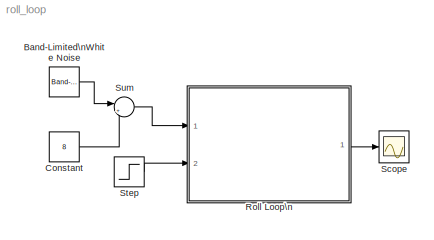
MODEL roll_loop
KIND model
BLOCK [Reference] Band-Limited\nWhite Noise  REF=simulink/Sources/Band-Limited\nWhite Noise
  Cov = [0.1]
  Ports = [0, 1]
  SID = 26
  SourceBlock = simulink/Sources/Band-Limited\nWhite Noise
  SourceProductBaseCode = SL
  SourceProductName = Simulink
  SourceType = Band-Limited White Noise.
  Ts = 0.1
  VectorParams1D = on
  seed = [23341]
BLOCK [Constant] Constant
  SID = 28
  Value = 8
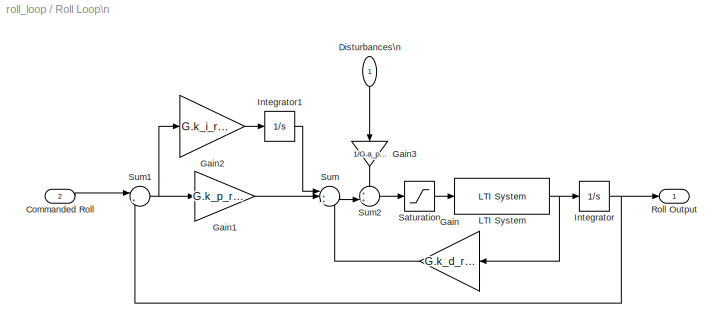
BLOCK [SubSystem] Roll Loop\n
  Ports = [2, 1]
  RequestExecContextInheritance = off
  SID = 21
BLOCK [Inport] Roll Loop\n/Commanded Roll
  IconDisplay = Port number
  Port = 2
  SID = 23
BLOCK [Inport] Roll Loop\n/Disturbances\n
  IconDisplay = Port number
  SID = 22
BLOCK [Gain] Roll Loop\n/Gain
  Gain = G.k_d_roll
  OutDataTypeStr = Inherit: Inherit via internal rule
  ParamDataTypeStr = Inherit: Inherit via internal rule
  SID = 2
  SaturateOnIntegerOverflow = off
BLOCK [Gain] Roll Loop\n/Gain1
  Gain = G.k_p_roll
  OutDataTypeStr = Inherit: Inherit via internal rule
  ParamDataTypeStr = Inherit: Inherit via internal rule
  SID = 6
  SaturateOnIntegerOverflow = off
BLOCK [Gain] Roll Loop\n/Gain2
  Gain = G.k_i_roll
  OutDataTypeStr = Inherit: Inherit via internal rule
  ParamDataTypeStr = Inherit: Inherit via internal rule
  SID = 8
  SaturateOnIntegerOverflow = off
BLOCK [Gain] Roll Loop\n/Gain3
  Gain = 1/G.a_phi2
  OutDataTypeStr = Inherit: Inherit via internal rule
  ParamDataTypeStr = Inherit: Inherit via internal rule
  SID = 14
  SaturateOnIntegerOverflow = off
BLOCK [Integrator] Roll Loop\n/Integrator
  Ports = [1, 1]
  SID = 4
BLOCK [Integrator] Roll Loop\n/Integrator1
  Ports = [1, 1]
  SID = 7
BLOCK [Reference] Roll Loop\n/LTI System  REF=cstblocks/LTI System
  IC = []
  Ports = [1, 1]
  SID = 1
  SourceBlock = cstblocks/LTI System
  SourceProductBaseCode = CT
  SourceProductName = Control System Toolbox
  SourceType = LTI Block
  sys = T_p_delta_a
BLOCK [Outport] Roll Loop\n/Roll Output
  IconDisplay = Port number
  SID = 24
BLOCK [Saturate] Roll Loop\n/Saturation
  InputPortMap = u0
  LowerLimit = -G.delta_a_max
  Ports = [1, 1]
  SID = 20
  UpperLimit = G.delta_a_max
BLOCK [Sum] Roll Loop\n/Sum
  IconShape = round
  InputSameDT = off
  Inputs = |++-
  OutDataTypeStr = Inherit: Inherit via internal rule
  Ports = [3, 1]
  SID = 3
  SaturateOnIntegerOverflow = off
BLOCK [Sum] Roll Loop\n/Sum1
  IconShape = round
  InputSameDT = off
  Inputs = |+-
  OutDataTypeStr = Inherit: Inherit via internal rule
  Ports = [2, 1]
  SID = 5
  SaturateOnIntegerOverflow = off
BLOCK [Sum] Roll Loop\n/Sum2
  IconShape = round
  InputSameDT = off
  Inputs = ++|
  OutDataTypeStr = Inherit: Inherit via internal rule
  Ports = [2, 1]
  SID = 13
  SaturateOnIntegerOverflow = off
BLOCK [Scope] Scope
  Floating = off
  NumInputPorts = 1
  Ports = [1]
  SID = 9
  ScopeSpecificationString = Simulink.scopes.TimeScopeBlockCfg('CurrentConfiguration', extmgr.ConfigurationSet(extmgr.Configuration('Core','General UI',true),extmgr.Configuration('Core','Source UI',true),extmgr.Configuration('Sources','WiredSimulink',true),extmgr.Configuration('Visuals','Time Domain',true,'SerializedDisplays',{struct('MinYLimReal','-0.05048','MaxYLimReal','0.45432','YLabelReal','','MinYLimMag','0.00000','MaxY...<+1712ch>
BLOCK [Step] Step
  After = pi/9
  SID = 10
  SampleTime = 0
BLOCK [Sum] Sum
  IconShape = round
  InputSameDT = off
  Inputs = |++
  OutDataTypeStr = Inherit: Inherit via internal rule
  Ports = [2, 1]
  SID = 27
  SaturateOnIntegerOverflow = off
LINE Band-Limited\nWhite Noise:1 -> Sum:1
LINE Constant:1 -> Sum:2
LINE Roll Loop\n/Commanded Roll:1 -> Roll Loop\n/Sum1:1
LINE Roll Loop\n/Disturbances\n:1 -> Roll Loop\n/Gain3:1
LINE Roll Loop\n/Gain1:1 -> Roll Loop\n/Sum:2
LINE Roll Loop\n/Gain2:1 -> Roll Loop\n/Integrator1:1
LINE Roll Loop\n/Gain3:1 -> Roll Loop\n/Sum2:1
LINE Roll Loop\n/Gain:1 -> Roll Loop\n/Sum:3
LINE Roll Loop\n/Integrator1:1 -> Roll Loop\n/Sum:1
NET Roll Loop\n/Integrator:1 -> Roll Loop\n/Roll Output:1, Roll Loop\n/Sum1:2
NET Roll Loop\n/LTI System:1 -> Roll Loop\n/Gain:1, Roll Loop\n/Integrator:1
LINE Roll Loop\n/Saturation:1 -> Roll Loop\n/LTI System:1
NET Roll Loop\n/Sum1:1 -> Roll Loop\n/Gain1:1, Roll Loop\n/Gain2:1
LINE Roll Loop\n/Sum2:1 -> Roll Loop\n/Saturation:1
LINE Roll Loop\n/Sum:1 -> Roll Loop\n/Sum2:2
LINE Roll Loop\n:1 -> Scope:1
LINE Step:1 -> Roll Loop\n:2
LINE Sum:1 -> Roll Loop\n:1
note: NET lines group one-source signal fan-out (src -> all destinations, sorted); 1:1 wires keep LINE
